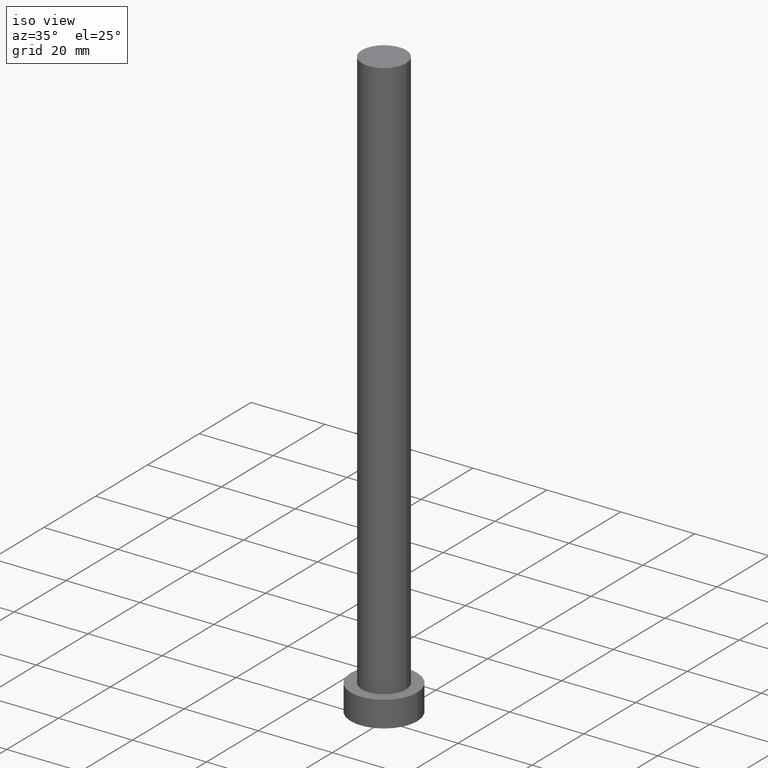
[diagram: clean part render]
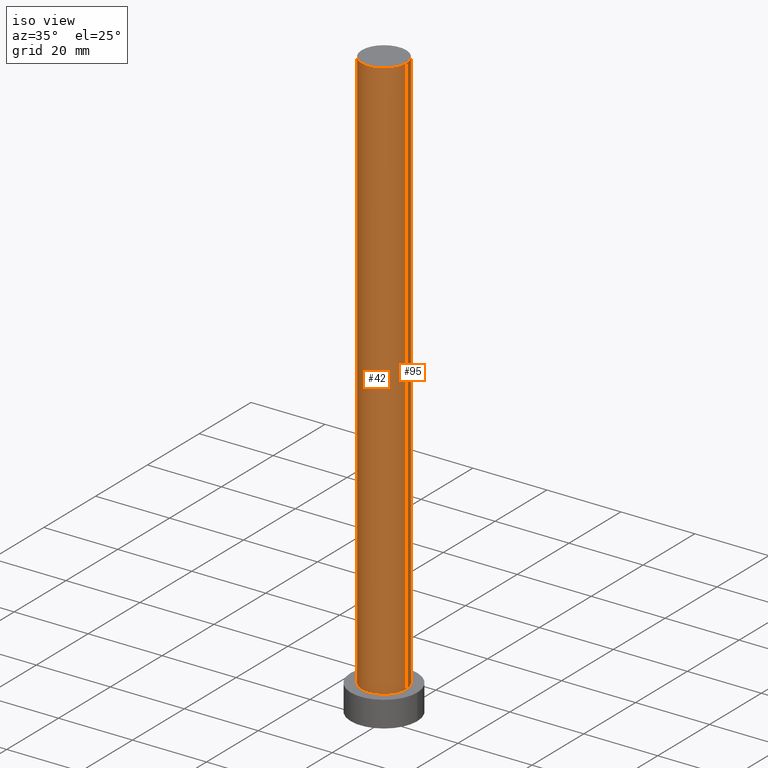
[diagram: same view with one multi-face feature highlighted, each face labeled with its STEP entity id]
A machine part, iso view. The highlighted faces form ONE feature: a constant-radius fillet chain: 2 tangent blend faces with common blend radius 6 mm. The faces share edges in the B-rep.
Their STEP definitions:
[1] entity #95 (Cylinder):
#6 = DIRECTION ( 'NONE',  ( -1.000000000000000000, 0.000000000000000000, 0.000000000000000000 ) ) ;
#12 = CARTESIAN_POINT ( 'NONE',  ( -6.000000000000000888, 0.000000000000000000, 160.0000000000000000 ) ) ;
#21 = VERTEX_POINT ( 'NONE', #238 ) ;
#29 = EDGE_CURVE ( 'NONE', #82, #217, #152, .T. ) ;
#37 = AXIS2_PLACEMENT_3D ( 'NONE', #45, #180, #83 ) ;
#45 = CARTESIAN_POINT ( 'NONE',  ( 0.000000000000000000, 0.000000000000000000, 160.0000000000000000 ) ) ;
#49 = DIRECTION ( 'NONE',  ( -0.000000000000000000, -0.000000000000000000, -1.000000000000000000 ) ) ;
#61 = ORIENTED_EDGE ( 'NONE', *, *, #69, .T. ) ;
#64 = DIRECTION ( 'NONE',  ( 0.000000000000000000, 0.000000000000000000, 1.000000000000000000 ) ) ;
#69 = EDGE_CURVE ( 'NONE', #21, #239, #245, .T. ) ;
#82 = VERTEX_POINT ( 'NONE', #204 ) ;
#83 = DIRECTION ( 'NONE',  ( 1.000000000000000000, 0.000000000000000000, 0.000000000000000000 ) ) ;
#88 = AXIS2_PLACEMENT_3D ( 'NONE', #145, #64, #111 ) ;
#89 = FACE_OUTER_BOUND ( 'NONE', #237, .T. ) ;
#95 = ADVANCED_FACE ( 'NONE', ( #89 ), #131, .T. ) ;
#99 = AXIS2_PLACEMENT_3D ( 'NONE', #205, #244, #6 ) ;
#105 = ORIENTED_EDGE ( 'NONE', *, *, #156, .F. ) ;
#111 = DIRECTION ( 'NONE',  ( 1.000000000000000000, 0.000000000000000000, 0.000000000000000000 ) ) ;
#119 = ORIENTED_EDGE ( 'NONE', *, *, #29, .F. ) ;
#131 = CYLINDRICAL_SURFACE ( 'NONE', #99, 6.000000000000000888 ) ;
#143 = EDGE_CURVE ( 'NONE', #82, #21, #164, .T. ) ;
#145 = CARTESIAN_POINT ( 'NONE',  ( 0.000000000000000000, 0.000000000000000000, 7.000000000000000000 ) ) ;
#146 = CARTESIAN_POINT ( 'NONE',  ( 6.000000000000000888, 7.347880794884120722E-16, 160.0000000000000000 ) ) ;
#152 = CIRCLE ( 'NONE', #37, 6.000000000000000888 ) ;
#156 = EDGE_CURVE ( 'NONE', #217, #239, #189, .T. ) ;
#164 = LINE ( 'NONE', #146, #218 ) ;
#165 = VECTOR ( 'NONE', #187, 1000.000000000000000 ) ;
#180 = DIRECTION ( 'NONE',  ( 0.000000000000000000, 0.000000000000000000, 1.000000000000000000 ) ) ;
#187 = DIRECTION ( 'NONE',  ( -0.000000000000000000, -0.000000000000000000, -1.000000000000000000 ) ) ;
#189 = LINE ( 'NONE', #206, #165 ) ;
#204 = CARTESIAN_POINT ( 'NONE',  ( 6.000000000000000888, 7.347880794884120722E-16, 160.0000000000000000 ) ) ;
#205 = CARTESIAN_POINT ( 'NONE',  ( 0.000000000000000000, 0.000000000000000000, 160.0000000000000000 ) ) ;
#206 = CARTESIAN_POINT ( 'NONE',  ( -6.000000000000000888, 0.000000000000000000, 160.0000000000000000 ) ) ;
#217 = VERTEX_POINT ( 'NONE', #12 ) ;
#218 = VECTOR ( 'NONE', #49, 1000.000000000000000 ) ;
#219 = ORIENTED_EDGE ( 'NONE', *, *, #143, .T. ) ;
#227 = CARTESIAN_POINT ( 'NONE',  ( -6.000000000000000888, 0.000000000000000000, 7.000000000000000000 ) ) ;
#237 = EDGE_LOOP ( 'NONE', ( #119, #219, #61, #105 ) ) ;
#238 = CARTESIAN_POINT ( 'NONE',  ( 6.000000000000000888, 7.347880794884120722E-16, 7.000000000000000000 ) ) ;
#239 = VERTEX_POINT ( 'NONE', #227 ) ;
#244 = DIRECTION ( 'NONE',  ( -0.000000000000000000, -0.000000000000000000, -1.000000000000000000 ) ) ;
#245 = CIRCLE ( 'NONE', #88, 6.000000000000000888 ) ;
[2] entity #42 (Cylinder):
#12 = CARTESIAN_POINT ( 'NONE',  ( -6.000000000000000888, 0.000000000000000000, 160.0000000000000000 ) ) ;
#21 = VERTEX_POINT ( 'NONE', #238 ) ;
#42 = ADVANCED_FACE ( 'NONE', ( #254 ), #118, .T. ) ;
#47 = CARTESIAN_POINT ( 'NONE',  ( 0.000000000000000000, 0.000000000000000000, 160.0000000000000000 ) ) ;
#49 = DIRECTION ( 'NONE',  ( -0.000000000000000000, -0.000000000000000000, -1.000000000000000000 ) ) ;
#59 = DIRECTION ( 'NONE',  ( -1.000000000000000000, 0.000000000000000000, 0.000000000000000000 ) ) ;
#66 = DIRECTION ( 'NONE',  ( 0.000000000000000000, 0.000000000000000000, 1.000000000000000000 ) ) ;
#72 = CIRCLE ( 'NONE', #104, 6.000000000000000888 ) ;
#79 = CARTESIAN_POINT ( 'NONE',  ( 0.000000000000000000, 0.000000000000000000, 160.0000000000000000 ) ) ;
#82 = VERTEX_POINT ( 'NONE', #204 ) ;
#104 = AXIS2_PLACEMENT_3D ( 'NONE', #108, #66, #246 ) ;
#108 = CARTESIAN_POINT ( 'NONE',  ( 0.000000000000000000, 0.000000000000000000, 7.000000000000000000 ) ) ;
#118 = CYLINDRICAL_SURFACE ( 'NONE', #209, 6.000000000000000888 ) ;
#121 = ORIENTED_EDGE ( 'NONE', *, *, #156, .T. ) ;
#126 = EDGE_CURVE ( 'NONE', #217, #82, #158, .T. ) ;
#135 = EDGE_CURVE ( 'NONE', #239, #21, #72, .T. ) ;
#143 = EDGE_CURVE ( 'NONE', #82, #21, #164, .T. ) ;
#144 = AXIS2_PLACEMENT_3D ( 'NONE', #47, #170, #208 ) ;
#146 = CARTESIAN_POINT ( 'NONE',  ( 6.000000000000000888, 7.347880794884120722E-16, 160.0000000000000000 ) ) ;
#156 = EDGE_CURVE ( 'NONE', #217, #239, #189, .T. ) ;
#158 = CIRCLE ( 'NONE', #144, 6.000000000000000888 ) ;
#164 = LINE ( 'NONE', #146, #218 ) ;
#165 = VECTOR ( 'NONE', #187, 1000.000000000000000 ) ;
#170 = DIRECTION ( 'NONE',  ( 0.000000000000000000, 0.000000000000000000, 1.000000000000000000 ) ) ;
#179 = ORIENTED_EDGE ( 'NONE', *, *, #135, .T. ) ;
#187 = DIRECTION ( 'NONE',  ( -0.000000000000000000, -0.000000000000000000, -1.000000000000000000 ) ) ;
#189 = LINE ( 'NONE', #206, #165 ) ;
#200 = ORIENTED_EDGE ( 'NONE', *, *, #126, .F. ) ;
#203 = ORIENTED_EDGE ( 'NONE', *, *, #143, .F. ) ;
#204 = CARTESIAN_POINT ( 'NONE',  ( 6.000000000000000888, 7.347880794884120722E-16, 160.0000000000000000 ) ) ;
#206 = CARTESIAN_POINT ( 'NONE',  ( -6.000000000000000888, 0.000000000000000000, 160.0000000000000000 ) ) ;
#208 = DIRECTION ( 'NONE',  ( 1.000000000000000000, 0.000000000000000000, 0.000000000000000000 ) ) ;
#209 = AXIS2_PLACEMENT_3D ( 'NONE', #79, #236, #59 ) ;
#217 = VERTEX_POINT ( 'NONE', #12 ) ;
#218 = VECTOR ( 'NONE', #49, 1000.000000000000000 ) ;
#220 = EDGE_LOOP ( 'NONE', ( #203, #200, #121, #179 ) ) ;
#227 = CARTESIAN_POINT ( 'NONE',  ( -6.000000000000000888, 0.000000000000000000, 7.000000000000000000 ) ) ;
#236 = DIRECTION ( 'NONE',  ( -0.000000000000000000, -0.000000000000000000, -1.000000000000000000 ) ) ;
#238 = CARTESIAN_POINT ( 'NONE',  ( 6.000000000000000888, 7.347880794884120722E-16, 7.000000000000000000 ) ) ;
#239 = VERTEX_POINT ( 'NONE', #227 ) ;
#246 = DIRECTION ( 'NONE',  ( 1.000000000000000000, 0.000000000000000000, 0.000000000000000000 ) ) ;
#254 = FACE_OUTER_BOUND ( 'NONE', #220, .T. ) ;